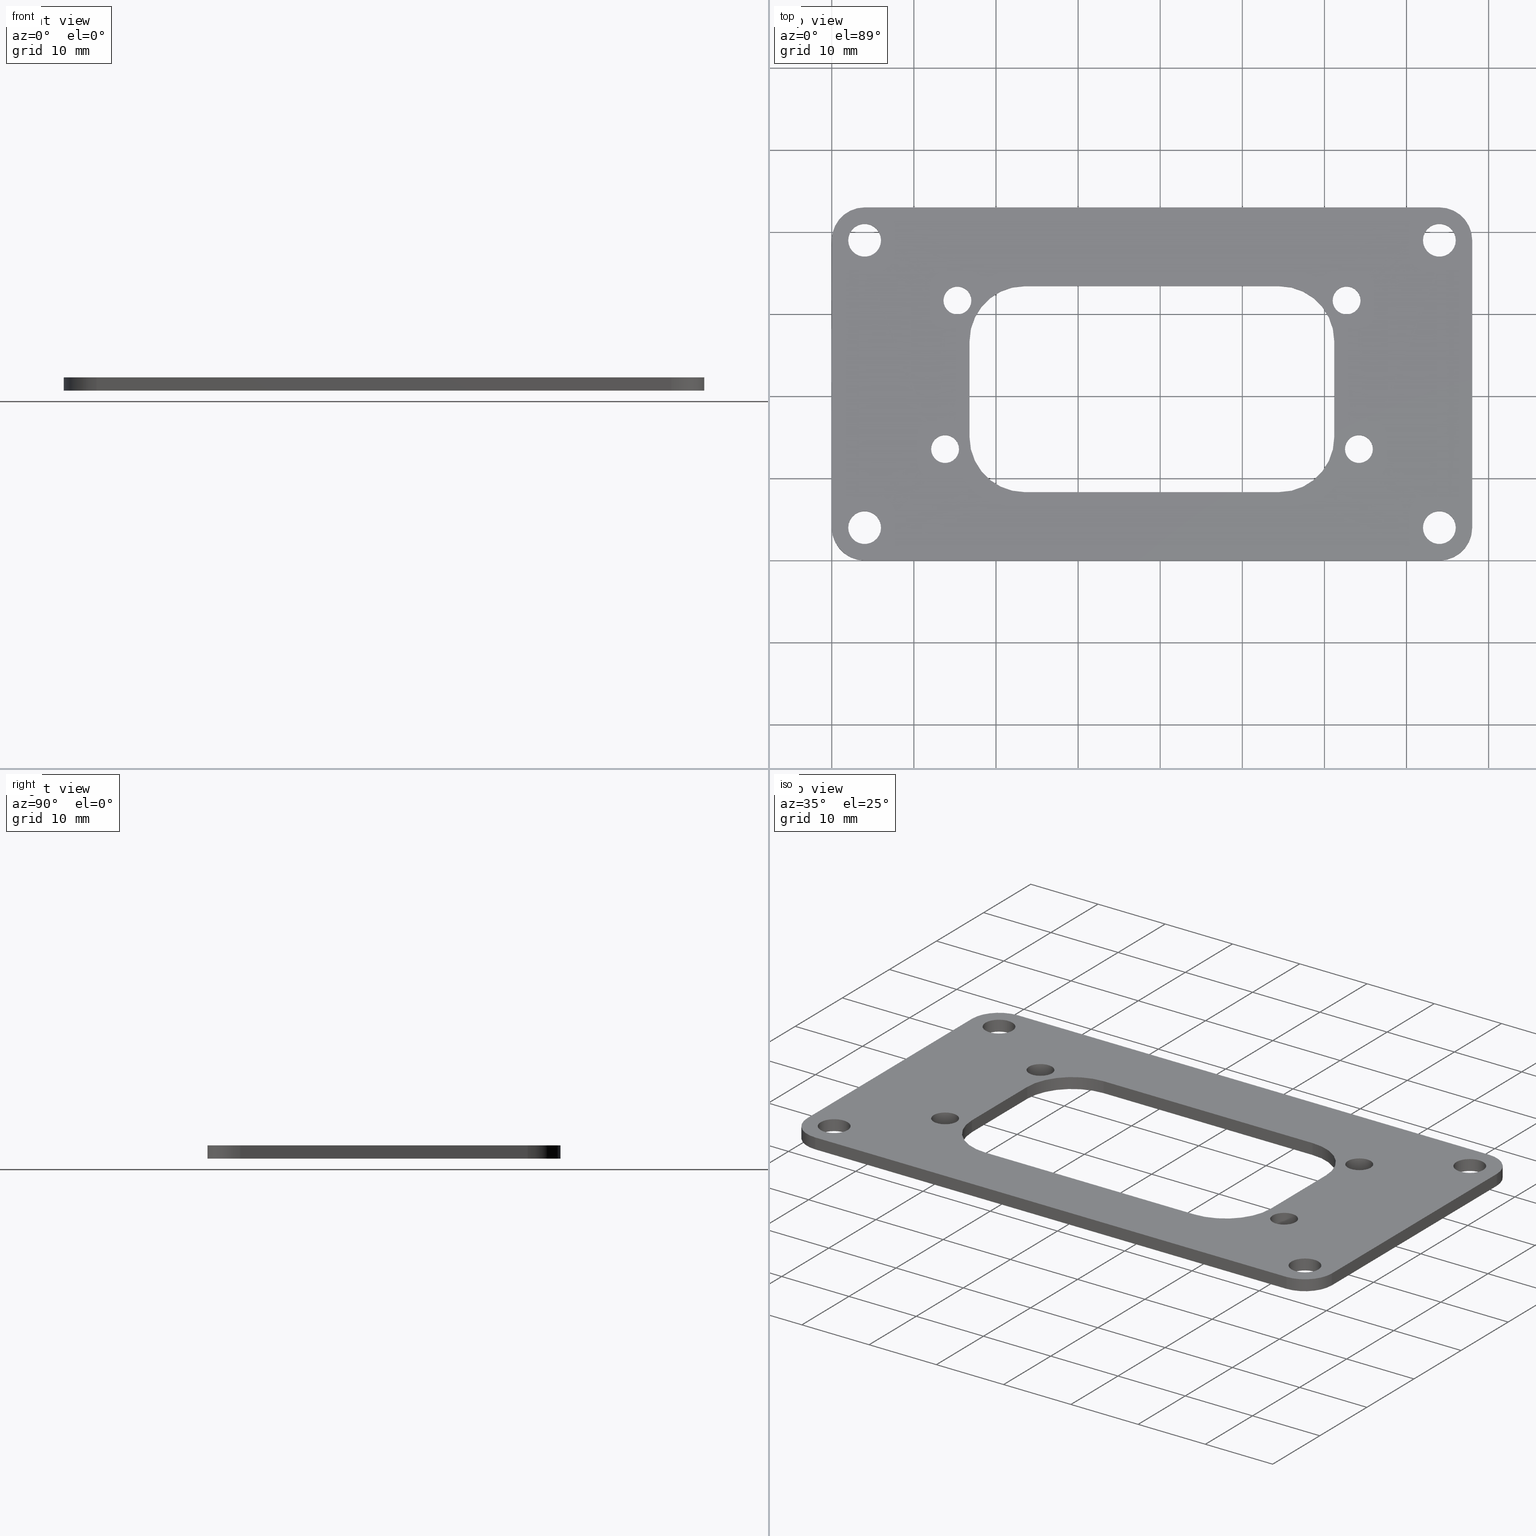
[diagram: canonical four-view strip — front | top / right | iso, engineering-drawing reading convention]
A machine part, canonical four-view strip (front | top / right | iso — engineering-drawing reading convention). The complete STEP part file that produces these views, byte-faithful:
ISO-10303-21;
HEADER;
FILE_DESCRIPTION(('Open CASCADE Model'),'2;1');
FILE_NAME('Open CASCADE Shape Model','2023-08-14T16:38:06',('Author'),(
    'Open CASCADE'),'Open CASCADE STEP processor 7.5','Open CASCADE 7.5'
  ,'Unknown');
FILE_SCHEMA(('AUTOMOTIVE_DESIGN { 1 0 10303 214 1 1 1 1 }'));
ENDSEC;
DATA;
#1 = APPLICATION_PROTOCOL_DEFINITION('international standard',
  'automotive_design',2000,#2);
#2 = APPLICATION_CONTEXT(
  'core data for automotive mechanical design processes');
#3 = SHAPE_DEFINITION_REPRESENTATION(#4,#10);
#4 = PRODUCT_DEFINITION_SHAPE('','',#5);
#5 = PRODUCT_DEFINITION('design','',#6,#9);
#6 = PRODUCT_DEFINITION_FORMATION('','',#7);
#7 = PRODUCT('PCB','PCB','',(#8));
#8 = PRODUCT_CONTEXT('',#2,'mechanical');
#9 = PRODUCT_DEFINITION_CONTEXT('part definition',#2,'design');
#10 = SHAPE_REPRESENTATION('',(#11,#15),#19);
#11 = AXIS2_PLACEMENT_3D('',#12,#13,#14);
#12 = CARTESIAN_POINT('',(0.,0.,0.));
#13 = DIRECTION('',(0.,0.,1.));
#14 = DIRECTION('',(1.,0.,-0.));
#15 = AXIS2_PLACEMENT_3D('',#16,#17,#18);
#16 = CARTESIAN_POINT('',(0.,0.,0.));
#17 = DIRECTION('',(0.,0.,1.));
#18 = DIRECTION('',(1.,0.,-0.));
#19 = ( GEOMETRIC_REPRESENTATION_CONTEXT(3) 
GLOBAL_UNCERTAINTY_ASSIGNED_CONTEXT((#23)) GLOBAL_UNIT_ASSIGNED_CONTEXT(
(#20,#21,#22)) REPRESENTATION_CONTEXT('Context #1',
  '3D Context with UNIT and UNCERTAINTY') );
#20 = ( LENGTH_UNIT() NAMED_UNIT(*) SI_UNIT(.MILLI.,.METRE.) );
#21 = ( NAMED_UNIT(*) PLANE_ANGLE_UNIT() SI_UNIT($,.RADIAN.) );
#22 = ( NAMED_UNIT(*) SI_UNIT($,.STERADIAN.) SOLID_ANGLE_UNIT() );
#23 = UNCERTAINTY_MEASURE_WITH_UNIT(LENGTH_MEASURE(1.E-07),#20,
  'distance_accuracy_value','confusion accuracy');
#24 = PRODUCT_RELATED_PRODUCT_CATEGORY('part',$,(#7));
#25 = SHAPE_DEFINITION_REPRESENTATION(#26,#32);
#26 = PRODUCT_DEFINITION_SHAPE('','',#27);
#27 = PRODUCT_DEFINITION('design','',#28,#31);
#28 = PRODUCT_DEFINITION_FORMATION('','',#29);
#29 = PRODUCT('Board','Board','',(#30));
#30 = PRODUCT_CONTEXT('',#2,'mechanical');
#31 = PRODUCT_DEFINITION_CONTEXT('part definition',#2,'design');
#32 = SHAPE_REPRESENTATION('',(#11,#33),#37);
#33 = AXIS2_PLACEMENT_3D('',#34,#35,#36);
#34 = CARTESIAN_POINT('',(0.,0.,-1.60000442));
#35 = DIRECTION('',(0.,0.,1.));
#36 = DIRECTION('',(1.,0.,-0.));
#37 = ( GEOMETRIC_REPRESENTATION_CONTEXT(3) 
GLOBAL_UNCERTAINTY_ASSIGNED_CONTEXT((#41)) GLOBAL_UNIT_ASSIGNED_CONTEXT(
(#38,#39,#40)) REPRESENTATION_CONTEXT('Context #1',
  '3D Context with UNIT and UNCERTAINTY') );
#38 = ( LENGTH_UNIT() NAMED_UNIT(*) SI_UNIT(.MILLI.,.METRE.) );
#39 = ( NAMED_UNIT(*) PLANE_ANGLE_UNIT() SI_UNIT($,.RADIAN.) );
#40 = ( NAMED_UNIT(*) SI_UNIT($,.STERADIAN.) SOLID_ANGLE_UNIT() );
#41 = UNCERTAINTY_MEASURE_WITH_UNIT(LENGTH_MEASURE(1.E-07),#38,
  'distance_accuracy_value','confusion accuracy');
#42 = ADVANCED_BREP_SHAPE_REPRESENTATION('',(#11,#43),#921);
#43 = MANIFOLD_SOLID_BREP('',#44);
#44 = CLOSED_SHELL('',(#45,#85,#118,#149,#182,#213,#246,#277,#301,#334,
    #367,#400,#433,#475,#506,#539,#570,#603,#634,#667,#689,#722,#755,
    #788,#821,#871));
#45 = ADVANCED_FACE('',(#46),#80,.T.);
#46 = FACE_BOUND('',#47,.T.);
#47 = EDGE_LOOP('',(#48,#58,#66,#74));
#48 = ORIENTED_EDGE('',*,*,#49,.T.);
#49 = EDGE_CURVE('',#50,#52,#54,.T.);
#50 = VERTEX_POINT('',#51);
#51 = CARTESIAN_POINT('',(-8.881784154862E-16,4.,0.));
#52 = VERTEX_POINT('',#53);
#53 = CARTESIAN_POINT('',(-8.881784154862E-16,4.,1.60000442));
#54 = LINE('',#55,#56);
#55 = CARTESIAN_POINT('',(-8.881784154862E-16,4.,0.));
#56 = VECTOR('',#57,1.);
#57 = DIRECTION('',(0.,0.,1.));
#58 = ORIENTED_EDGE('',*,*,#59,.T.);
#59 = EDGE_CURVE('',#52,#60,#62,.T.);
#60 = VERTEX_POINT('',#61);
#61 = CARTESIAN_POINT('',(-8.881784197001E-16,39.,1.60000442));
#62 = LINE('',#63,#64);
#63 = CARTESIAN_POINT('',(0.,4.,1.60000442));
#64 = VECTOR('',#65,1.);
#65 = DIRECTION('',(0.,1.,0.));
#66 = ORIENTED_EDGE('',*,*,#67,.F.);
#67 = EDGE_CURVE('',#68,#60,#70,.T.);
#68 = VERTEX_POINT('',#69);
#69 = CARTESIAN_POINT('',(-8.881784197001E-16,39.,0.));
#70 = LINE('',#71,#72);
#71 = CARTESIAN_POINT('',(-8.881784197001E-16,39.,0.));
#72 = VECTOR('',#73,1.);
#73 = DIRECTION('',(0.,0.,1.));
#74 = ORIENTED_EDGE('',*,*,#75,.F.);
#75 = EDGE_CURVE('',#50,#68,#76,.T.);
#76 = LINE('',#77,#78);
#77 = CARTESIAN_POINT('',(0.,4.,0.));
#78 = VECTOR('',#79,1.);
#79 = DIRECTION('',(0.,1.,0.));
#80 = PLANE('',#81);
#81 = AXIS2_PLACEMENT_3D('',#82,#83,#84);
#82 = CARTESIAN_POINT('',(0.,4.,0.));
#83 = DIRECTION('',(-1.,0.,0.));
#84 = DIRECTION('',(0.,1.,0.));
#85 = ADVANCED_FACE('',(#86),#113,.T.);
#86 = FACE_BOUND('',#87,.T.);
#87 = EDGE_LOOP('',(#88,#89,#98,#106));
#88 = ORIENTED_EDGE('',*,*,#67,.T.);
#89 = ORIENTED_EDGE('',*,*,#90,.T.);
#90 = EDGE_CURVE('',#60,#91,#93,.T.);
#91 = VERTEX_POINT('',#92);
#92 = CARTESIAN_POINT('',(4.,43.,1.60000442));
#93 = CIRCLE('',#94,4.001459203163);
#94 = AXIS2_PLACEMENT_3D('',#95,#96,#97);
#95 = CARTESIAN_POINT('',(4.001458937198,38.998541062802,1.60000442));
#96 = DIRECTION('',(0.,0.,-1.));
#97 = DIRECTION('',(-0.999999933533,3.646012926767E-04,0.));
#98 = ORIENTED_EDGE('',*,*,#99,.F.);
#99 = EDGE_CURVE('',#100,#91,#102,.T.);
#100 = VERTEX_POINT('',#101);
#101 = CARTESIAN_POINT('',(4.,43.,0.));
#102 = LINE('',#103,#104);
#103 = CARTESIAN_POINT('',(4.,43.,0.));
#104 = VECTOR('',#105,1.);
#105 = DIRECTION('',(0.,0.,1.));
#106 = ORIENTED_EDGE('',*,*,#107,.F.);
#107 = EDGE_CURVE('',#68,#100,#108,.T.);
#108 = CIRCLE('',#109,4.001459203163);
#109 = AXIS2_PLACEMENT_3D('',#110,#111,#112);
#110 = CARTESIAN_POINT('',(4.001458937198,38.998541062802,0.));
#111 = DIRECTION('',(0.,0.,-1.));
#112 = DIRECTION('',(-0.999999933533,3.646012926767E-04,0.));
#113 = CYLINDRICAL_SURFACE('',#114,4.001459203163);
#114 = AXIS2_PLACEMENT_3D('',#115,#116,#117);
#115 = CARTESIAN_POINT('',(4.001458937198,38.998541062802,0.));
#116 = DIRECTION('',(0.,0.,-1.));
#117 = DIRECTION('',(-0.999999933533,3.646012926767E-04,0.));
#118 = ADVANCED_FACE('',(#119),#144,.T.);
#119 = FACE_BOUND('',#120,.T.);
#120 = EDGE_LOOP('',(#121,#122,#130,#138));
#121 = ORIENTED_EDGE('',*,*,#99,.T.);
#122 = ORIENTED_EDGE('',*,*,#123,.T.);
#123 = EDGE_CURVE('',#91,#124,#126,.T.);
#124 = VERTEX_POINT('',#125);
#125 = CARTESIAN_POINT('',(74.,43.,1.60000442));
#126 = LINE('',#127,#128);
#127 = CARTESIAN_POINT('',(4.,43.,1.60000442));
#128 = VECTOR('',#129,1.);
#129 = DIRECTION('',(1.,0.,0.));
#130 = ORIENTED_EDGE('',*,*,#131,.F.);
#131 = EDGE_CURVE('',#132,#124,#134,.T.);
#132 = VERTEX_POINT('',#133);
#133 = CARTESIAN_POINT('',(74.,43.,0.));
#134 = LINE('',#135,#136);
#135 = CARTESIAN_POINT('',(74.,43.,0.));
#136 = VECTOR('',#137,1.);
#137 = DIRECTION('',(0.,0.,1.));
#138 = ORIENTED_EDGE('',*,*,#139,.F.);
#139 = EDGE_CURVE('',#100,#132,#140,.T.);
#140 = LINE('',#141,#142);
#141 = CARTESIAN_POINT('',(4.,43.,0.));
#142 = VECTOR('',#143,1.);
#143 = DIRECTION('',(1.,0.,0.));
#144 = PLANE('',#145);
#145 = AXIS2_PLACEMENT_3D('',#146,#147,#148);
#146 = CARTESIAN_POINT('',(4.,43.,0.));
#147 = DIRECTION('',(0.,1.,0.));
#148 = DIRECTION('',(1.,0.,0.));
#149 = ADVANCED_FACE('',(#150),#177,.T.);
#150 = FACE_BOUND('',#151,.T.);
#151 = EDGE_LOOP('',(#152,#153,#162,#170));
#152 = ORIENTED_EDGE('',*,*,#131,.T.);
#153 = ORIENTED_EDGE('',*,*,#154,.T.);
#154 = EDGE_CURVE('',#124,#155,#157,.T.);
#155 = VERTEX_POINT('',#156);
#156 = CARTESIAN_POINT('',(78.,39.,1.60000442));
#157 = CIRCLE('',#158,4.001459203163);
#158 = AXIS2_PLACEMENT_3D('',#159,#160,#161);
#159 = CARTESIAN_POINT('',(73.998541062802,38.998541062802,1.60000442));
#160 = DIRECTION('',(0.,0.,-1.));
#161 = DIRECTION('',(3.646012926767E-04,0.999999933533,0.));
#162 = ORIENTED_EDGE('',*,*,#163,.F.);
#163 = EDGE_CURVE('',#164,#155,#166,.T.);
#164 = VERTEX_POINT('',#165);
#165 = CARTESIAN_POINT('',(78.,39.,0.));
#166 = LINE('',#167,#168);
#167 = CARTESIAN_POINT('',(78.,39.,0.));
#168 = VECTOR('',#169,1.);
#169 = DIRECTION('',(0.,0.,1.));
#170 = ORIENTED_EDGE('',*,*,#171,.F.);
#171 = EDGE_CURVE('',#132,#164,#172,.T.);
#172 = CIRCLE('',#173,4.001459203163);
#173 = AXIS2_PLACEMENT_3D('',#174,#175,#176);
#174 = CARTESIAN_POINT('',(73.998541062802,38.998541062802,0.));
#175 = DIRECTION('',(0.,0.,-1.));
#176 = DIRECTION('',(3.646012926767E-04,0.999999933533,0.));
#177 = CYLINDRICAL_SURFACE('',#178,4.001459203163);
#178 = AXIS2_PLACEMENT_3D('',#179,#180,#181);
#179 = CARTESIAN_POINT('',(73.998541062802,38.998541062802,0.));
#180 = DIRECTION('',(0.,0.,-1.));
#181 = DIRECTION('',(3.646012926767E-04,0.999999933533,0.));
#182 = ADVANCED_FACE('',(#183),#208,.T.);
#183 = FACE_BOUND('',#184,.T.);
#184 = EDGE_LOOP('',(#185,#186,#194,#202));
#185 = ORIENTED_EDGE('',*,*,#163,.T.);
#186 = ORIENTED_EDGE('',*,*,#187,.T.);
#187 = EDGE_CURVE('',#155,#188,#190,.T.);
#188 = VERTEX_POINT('',#189);
#189 = CARTESIAN_POINT('',(78.,4.,1.60000442));
#190 = LINE('',#191,#192);
#191 = CARTESIAN_POINT('',(78.,39.,1.60000442));
#192 = VECTOR('',#193,1.);
#193 = DIRECTION('',(0.,-1.,0.));
#194 = ORIENTED_EDGE('',*,*,#195,.F.);
#195 = EDGE_CURVE('',#196,#188,#198,.T.);
#196 = VERTEX_POINT('',#197);
#197 = CARTESIAN_POINT('',(78.,4.,0.));
#198 = LINE('',#199,#200);
#199 = CARTESIAN_POINT('',(78.,4.,0.));
#200 = VECTOR('',#201,1.);
#201 = DIRECTION('',(0.,0.,1.));
#202 = ORIENTED_EDGE('',*,*,#203,.F.);
#203 = EDGE_CURVE('',#164,#196,#204,.T.);
#204 = LINE('',#205,#206);
#205 = CARTESIAN_POINT('',(78.,39.,0.));
#206 = VECTOR('',#207,1.);
#207 = DIRECTION('',(0.,-1.,0.));
#208 = PLANE('',#209);
#209 = AXIS2_PLACEMENT_3D('',#210,#211,#212);
#210 = CARTESIAN_POINT('',(78.,39.,0.));
#211 = DIRECTION('',(1.,0.,-0.));
#212 = DIRECTION('',(0.,-1.,0.));
#213 = ADVANCED_FACE('',(#214),#241,.T.);
#214 = FACE_BOUND('',#215,.T.);
#215 = EDGE_LOOP('',(#216,#217,#226,#234));
#216 = ORIENTED_EDGE('',*,*,#195,.T.);
#217 = ORIENTED_EDGE('',*,*,#218,.T.);
#218 = EDGE_CURVE('',#188,#219,#221,.T.);
#219 = VERTEX_POINT('',#220);
#220 = CARTESIAN_POINT('',(74.,-1.33226762955E-15,1.60000442));
#221 = CIRCLE('',#222,4.001459203163);
#222 = AXIS2_PLACEMENT_3D('',#223,#224,#225);
#223 = CARTESIAN_POINT('',(73.998541062802,4.001458937198,1.60000442));
#224 = DIRECTION('',(0.,0.,-1.));
#225 = DIRECTION('',(0.999999933533,-3.646012926758E-04,0.));
#226 = ORIENTED_EDGE('',*,*,#227,.F.);
#227 = EDGE_CURVE('',#228,#219,#230,.T.);
#228 = VERTEX_POINT('',#229);
#229 = CARTESIAN_POINT('',(74.,-1.33226762955E-15,0.));
#230 = LINE('',#231,#232);
#231 = CARTESIAN_POINT('',(74.,-1.33226762955E-15,0.));
#232 = VECTOR('',#233,1.);
#233 = DIRECTION('',(0.,0.,1.));
#234 = ORIENTED_EDGE('',*,*,#235,.F.);
#235 = EDGE_CURVE('',#196,#228,#236,.T.);
#236 = CIRCLE('',#237,4.001459203163);
#237 = AXIS2_PLACEMENT_3D('',#238,#239,#240);
#238 = CARTESIAN_POINT('',(73.998541062802,4.001458937198,0.));
#239 = DIRECTION('',(0.,0.,-1.));
#240 = DIRECTION('',(0.999999933533,-3.646012926758E-04,0.));
#241 = CYLINDRICAL_SURFACE('',#242,4.001459203163);
#242 = AXIS2_PLACEMENT_3D('',#243,#244,#245);
#243 = CARTESIAN_POINT('',(73.998541062802,4.001458937198,0.));
#244 = DIRECTION('',(0.,0.,-1.));
#245 = DIRECTION('',(0.999999933533,-3.646012926758E-04,0.));
#246 = ADVANCED_FACE('',(#247),#272,.T.);
#247 = FACE_BOUND('',#248,.T.);
#248 = EDGE_LOOP('',(#249,#250,#258,#266));
#249 = ORIENTED_EDGE('',*,*,#227,.T.);
#250 = ORIENTED_EDGE('',*,*,#251,.T.);
#251 = EDGE_CURVE('',#219,#252,#254,.T.);
#252 = VERTEX_POINT('',#253);
#253 = CARTESIAN_POINT('',(4.,-4.440892098501E-16,1.60000442));
#254 = LINE('',#255,#256);
#255 = CARTESIAN_POINT('',(74.,0.,1.60000442));
#256 = VECTOR('',#257,1.);
#257 = DIRECTION('',(-1.,0.,0.));
#258 = ORIENTED_EDGE('',*,*,#259,.F.);
#259 = EDGE_CURVE('',#260,#252,#262,.T.);
#260 = VERTEX_POINT('',#261);
#261 = CARTESIAN_POINT('',(4.,-4.440892098501E-16,0.));
#262 = LINE('',#263,#264);
#263 = CARTESIAN_POINT('',(4.,-4.440892098501E-16,0.));
#264 = VECTOR('',#265,1.);
#265 = DIRECTION('',(0.,0.,1.));
#266 = ORIENTED_EDGE('',*,*,#267,.F.);
#267 = EDGE_CURVE('',#228,#260,#268,.T.);
#268 = LINE('',#269,#270);
#269 = CARTESIAN_POINT('',(74.,0.,0.));
#270 = VECTOR('',#271,1.);
#271 = DIRECTION('',(-1.,0.,0.));
#272 = PLANE('',#273);
#273 = AXIS2_PLACEMENT_3D('',#274,#275,#276);
#274 = CARTESIAN_POINT('',(74.,0.,0.));
#275 = DIRECTION('',(0.,-1.,0.));
#276 = DIRECTION('',(-1.,0.,0.));
#277 = ADVANCED_FACE('',(#278),#296,.T.);
#278 = FACE_BOUND('',#279,.T.);
#279 = EDGE_LOOP('',(#280,#281,#288,#289));
#280 = ORIENTED_EDGE('',*,*,#259,.T.);
#281 = ORIENTED_EDGE('',*,*,#282,.T.);
#282 = EDGE_CURVE('',#252,#52,#283,.T.);
#283 = CIRCLE('',#284,4.001459203163);
#284 = AXIS2_PLACEMENT_3D('',#285,#286,#287);
#285 = CARTESIAN_POINT('',(4.001458937198,4.001458937198,1.60000442));
#286 = DIRECTION('',(0.,0.,-1.));
#287 = DIRECTION('',(-3.646012926771E-04,-0.999999933533,-0.));
#288 = ORIENTED_EDGE('',*,*,#49,.F.);
#289 = ORIENTED_EDGE('',*,*,#290,.F.);
#290 = EDGE_CURVE('',#260,#50,#291,.T.);
#291 = CIRCLE('',#292,4.001459203163);
#292 = AXIS2_PLACEMENT_3D('',#293,#294,#295);
#293 = CARTESIAN_POINT('',(4.001458937198,4.001458937198,0.));
#294 = DIRECTION('',(0.,0.,-1.));
#295 = DIRECTION('',(-3.646012926771E-04,-0.999999933533,-0.));
#296 = CYLINDRICAL_SURFACE('',#297,4.001459203163);
#297 = AXIS2_PLACEMENT_3D('',#298,#299,#300);
#298 = CARTESIAN_POINT('',(4.001458937198,4.001458937198,0.));
#299 = DIRECTION('',(0.,0.,-1.));
#300 = DIRECTION('',(-3.646012926771E-04,-0.999999933533,-0.));
#301 = ADVANCED_FACE('',(#302),#329,.F.);
#302 = FACE_BOUND('',#303,.T.);
#303 = EDGE_LOOP('',(#304,#314,#321,#322));
#304 = ORIENTED_EDGE('',*,*,#305,.T.);
#305 = EDGE_CURVE('',#306,#308,#310,.T.);
#306 = VERTEX_POINT('',#307);
#307 = CARTESIAN_POINT('',(6.,4.,0.));
#308 = VERTEX_POINT('',#309);
#309 = CARTESIAN_POINT('',(6.,4.,1.60000442));
#310 = LINE('',#311,#312);
#311 = CARTESIAN_POINT('',(6.,4.,0.));
#312 = VECTOR('',#313,1.);
#313 = DIRECTION('',(0.,0.,1.));
#314 = ORIENTED_EDGE('',*,*,#315,.T.);
#315 = EDGE_CURVE('',#308,#308,#316,.T.);
#316 = CIRCLE('',#317,2.);
#317 = AXIS2_PLACEMENT_3D('',#318,#319,#320);
#318 = CARTESIAN_POINT('',(4.,4.,1.60000442));
#319 = DIRECTION('',(0.,0.,1.));
#320 = DIRECTION('',(1.,0.,-0.));
#321 = ORIENTED_EDGE('',*,*,#305,.F.);
#322 = ORIENTED_EDGE('',*,*,#323,.F.);
#323 = EDGE_CURVE('',#306,#306,#324,.T.);
#324 = CIRCLE('',#325,2.);
#325 = AXIS2_PLACEMENT_3D('',#326,#327,#328);
#326 = CARTESIAN_POINT('',(4.,4.,0.));
#327 = DIRECTION('',(0.,0.,1.));
#328 = DIRECTION('',(1.,0.,-0.));
#329 = CYLINDRICAL_SURFACE('',#330,2.);
#330 = AXIS2_PLACEMENT_3D('',#331,#332,#333);
#331 = CARTESIAN_POINT('',(4.,4.,0.));
#332 = DIRECTION('',(-0.,-0.,-1.));
#333 = DIRECTION('',(1.,0.,-0.));
#334 = ADVANCED_FACE('',(#335),#362,.F.);
#335 = FACE_BOUND('',#336,.T.);
#336 = EDGE_LOOP('',(#337,#347,#354,#355));
#337 = ORIENTED_EDGE('',*,*,#338,.T.);
#338 = EDGE_CURVE('',#339,#341,#343,.T.);
#339 = VERTEX_POINT('',#340);
#340 = CARTESIAN_POINT('',(15.5,13.57,0.));
#341 = VERTEX_POINT('',#342);
#342 = CARTESIAN_POINT('',(15.5,13.57,1.60000442));
#343 = LINE('',#344,#345);
#344 = CARTESIAN_POINT('',(15.5,13.57,0.));
#345 = VECTOR('',#346,1.);
#346 = DIRECTION('',(0.,0.,1.));
#347 = ORIENTED_EDGE('',*,*,#348,.T.);
#348 = EDGE_CURVE('',#341,#341,#349,.T.);
#349 = CIRCLE('',#350,1.7);
#350 = AXIS2_PLACEMENT_3D('',#351,#352,#353);
#351 = CARTESIAN_POINT('',(13.8,13.57,1.60000442));
#352 = DIRECTION('',(0.,0.,1.));
#353 = DIRECTION('',(1.,0.,-0.));
#354 = ORIENTED_EDGE('',*,*,#338,.F.);
#355 = ORIENTED_EDGE('',*,*,#356,.F.);
#356 = EDGE_CURVE('',#339,#339,#357,.T.);
#357 = CIRCLE('',#358,1.7);
#358 = AXIS2_PLACEMENT_3D('',#359,#360,#361);
#359 = CARTESIAN_POINT('',(13.8,13.57,0.));
#360 = DIRECTION('',(0.,0.,1.));
#361 = DIRECTION('',(1.,0.,-0.));
#362 = CYLINDRICAL_SURFACE('',#363,1.7);
#363 = AXIS2_PLACEMENT_3D('',#364,#365,#366);
#364 = CARTESIAN_POINT('',(13.8,13.57,0.));
#365 = DIRECTION('',(-0.,-0.,-1.));
#366 = DIRECTION('',(1.,0.,-0.));
#367 = ADVANCED_FACE('',(#368),#395,.F.);
#368 = FACE_BOUND('',#369,.T.);
#369 = EDGE_LOOP('',(#370,#380,#387,#388));
#370 = ORIENTED_EDGE('',*,*,#371,.T.);
#371 = EDGE_CURVE('',#372,#374,#376,.T.);
#372 = VERTEX_POINT('',#373);
#373 = CARTESIAN_POINT('',(6.,39.,0.));
#374 = VERTEX_POINT('',#375);
#375 = CARTESIAN_POINT('',(6.,39.,1.60000442));
#376 = LINE('',#377,#378);
#377 = CARTESIAN_POINT('',(6.,39.,0.));
#378 = VECTOR('',#379,1.);
#379 = DIRECTION('',(0.,0.,1.));
#380 = ORIENTED_EDGE('',*,*,#381,.T.);
#381 = EDGE_CURVE('',#374,#374,#382,.T.);
#382 = CIRCLE('',#383,2.);
#383 = AXIS2_PLACEMENT_3D('',#384,#385,#386);
#384 = CARTESIAN_POINT('',(4.,39.,1.60000442));
#385 = DIRECTION('',(0.,0.,1.));
#386 = DIRECTION('',(1.,0.,-0.));
#387 = ORIENTED_EDGE('',*,*,#371,.F.);
#388 = ORIENTED_EDGE('',*,*,#389,.F.);
#389 = EDGE_CURVE('',#372,#372,#390,.T.);
#390 = CIRCLE('',#391,2.);
#391 = AXIS2_PLACEMENT_3D('',#392,#393,#394);
#392 = CARTESIAN_POINT('',(4.,39.,0.));
#393 = DIRECTION('',(0.,0.,1.));
#394 = DIRECTION('',(1.,0.,-0.));
#395 = CYLINDRICAL_SURFACE('',#396,2.);
#396 = AXIS2_PLACEMENT_3D('',#397,#398,#399);
#397 = CARTESIAN_POINT('',(4.,39.,0.));
#398 = DIRECTION('',(-0.,-0.,-1.));
#399 = DIRECTION('',(1.,0.,-0.));
#400 = ADVANCED_FACE('',(#401),#428,.F.);
#401 = FACE_BOUND('',#402,.T.);
#402 = EDGE_LOOP('',(#403,#413,#420,#421));
#403 = ORIENTED_EDGE('',*,*,#404,.T.);
#404 = EDGE_CURVE('',#405,#407,#409,.T.);
#405 = VERTEX_POINT('',#406);
#406 = CARTESIAN_POINT('',(17.,31.669,0.));
#407 = VERTEX_POINT('',#408);
#408 = CARTESIAN_POINT('',(17.,31.669,1.60000442));
#409 = LINE('',#410,#411);
#410 = CARTESIAN_POINT('',(17.,31.669,0.));
#411 = VECTOR('',#412,1.);
#412 = DIRECTION('',(0.,0.,1.));
#413 = ORIENTED_EDGE('',*,*,#414,.T.);
#414 = EDGE_CURVE('',#407,#407,#415,.T.);
#415 = CIRCLE('',#416,1.7);
#416 = AXIS2_PLACEMENT_3D('',#417,#418,#419);
#417 = CARTESIAN_POINT('',(15.3,31.669,1.60000442));
#418 = DIRECTION('',(0.,0.,1.));
#419 = DIRECTION('',(1.,0.,-0.));
#420 = ORIENTED_EDGE('',*,*,#404,.F.);
#421 = ORIENTED_EDGE('',*,*,#422,.F.);
#422 = EDGE_CURVE('',#405,#405,#423,.T.);
#423 = CIRCLE('',#424,1.7);
#424 = AXIS2_PLACEMENT_3D('',#425,#426,#427);
#425 = CARTESIAN_POINT('',(15.3,31.669,0.));
#426 = DIRECTION('',(0.,0.,1.));
#427 = DIRECTION('',(1.,0.,-0.));
#428 = CYLINDRICAL_SURFACE('',#429,1.7);
#429 = AXIS2_PLACEMENT_3D('',#430,#431,#432);
#430 = CARTESIAN_POINT('',(15.3,31.669,0.));
#431 = DIRECTION('',(-0.,-0.,-1.));
#432 = DIRECTION('',(1.,0.,-0.));
#433 = ADVANCED_FACE('',(#434),#470,.F.);
#434 = FACE_BOUND('',#435,.F.);
#435 = EDGE_LOOP('',(#436,#446,#455,#463));
#436 = ORIENTED_EDGE('',*,*,#437,.T.);
#437 = EDGE_CURVE('',#438,#440,#442,.T.);
#438 = VERTEX_POINT('',#439);
#439 = CARTESIAN_POINT('',(23.475,8.319,0.));
#440 = VERTEX_POINT('',#441);
#441 = CARTESIAN_POINT('',(23.475,8.319,1.60000442));
#442 = LINE('',#443,#444);
#443 = CARTESIAN_POINT('',(23.475,8.319,0.));
#444 = VECTOR('',#445,1.);
#445 = DIRECTION('',(0.,0.,1.));
#446 = ORIENTED_EDGE('',*,*,#447,.T.);
#447 = EDGE_CURVE('',#440,#448,#450,.T.);
#448 = VERTEX_POINT('',#449);
#449 = CARTESIAN_POINT('',(16.775,15.019,1.60000442));
#450 = CIRCLE('',#451,6.698687448502);
#451 = AXIS2_PLACEMENT_3D('',#452,#453,#454);
#452 = CARTESIAN_POINT('',(23.473687319885,15.017687319885,1.60000442));
#453 = DIRECTION('',(0.,0.,-1.));
#454 = DIRECTION('',(1.959607946136E-04,-0.9999999808,0.));
#455 = ORIENTED_EDGE('',*,*,#456,.F.);
#456 = EDGE_CURVE('',#457,#448,#459,.T.);
#457 = VERTEX_POINT('',#458);
#458 = CARTESIAN_POINT('',(16.775,15.019,0.));
#459 = LINE('',#460,#461);
#460 = CARTESIAN_POINT('',(16.775,15.019,0.));
#461 = VECTOR('',#462,1.);
#462 = DIRECTION('',(0.,0.,1.));
#463 = ORIENTED_EDGE('',*,*,#464,.F.);
#464 = EDGE_CURVE('',#438,#457,#465,.T.);
#465 = CIRCLE('',#466,6.698687448502);
#466 = AXIS2_PLACEMENT_3D('',#467,#468,#469);
#467 = CARTESIAN_POINT('',(23.473687319885,15.017687319885,0.));
#468 = DIRECTION('',(0.,0.,-1.));
#469 = DIRECTION('',(1.959607946136E-04,-0.9999999808,0.));
#470 = CYLINDRICAL_SURFACE('',#471,6.698687448502);
#471 = AXIS2_PLACEMENT_3D('',#472,#473,#474);
#472 = CARTESIAN_POINT('',(23.473687319885,15.017687319885,0.));
#473 = DIRECTION('',(0.,0.,-1.));
#474 = DIRECTION('',(1.959607946136E-04,-0.9999999808,0.));
#475 = ADVANCED_FACE('',(#476),#501,.F.);
#476 = FACE_BOUND('',#477,.F.);
#477 = EDGE_LOOP('',(#478,#488,#494,#495));
#478 = ORIENTED_EDGE('',*,*,#479,.T.);
#479 = EDGE_CURVE('',#480,#482,#484,.T.);
#480 = VERTEX_POINT('',#481);
#481 = CARTESIAN_POINT('',(54.5,8.319,0.));
#482 = VERTEX_POINT('',#483);
#483 = CARTESIAN_POINT('',(54.5,8.319,1.60000442));
#484 = LINE('',#485,#486);
#485 = CARTESIAN_POINT('',(54.5,8.319,0.));
#486 = VECTOR('',#487,1.);
#487 = DIRECTION('',(0.,0.,1.));
#488 = ORIENTED_EDGE('',*,*,#489,.T.);
#489 = EDGE_CURVE('',#482,#440,#490,.T.);
#490 = LINE('',#491,#492);
#491 = CARTESIAN_POINT('',(54.5,8.319,1.60000442));
#492 = VECTOR('',#493,1.);
#493 = DIRECTION('',(-1.,0.,0.));
#494 = ORIENTED_EDGE('',*,*,#437,.F.);
#495 = ORIENTED_EDGE('',*,*,#496,.F.);
#496 = EDGE_CURVE('',#480,#438,#497,.T.);
#497 = LINE('',#498,#499);
#498 = CARTESIAN_POINT('',(54.5,8.319,0.));
#499 = VECTOR('',#500,1.);
#500 = DIRECTION('',(-1.,0.,0.));
#501 = PLANE('',#502);
#502 = AXIS2_PLACEMENT_3D('',#503,#504,#505);
#503 = CARTESIAN_POINT('',(54.5,8.319,0.));
#504 = DIRECTION('',(0.,-1.,0.));
#505 = DIRECTION('',(-1.,0.,0.));
#506 = ADVANCED_FACE('',(#507),#534,.F.);
#507 = FACE_BOUND('',#508,.F.);
#508 = EDGE_LOOP('',(#509,#519,#526,#527));
#509 = ORIENTED_EDGE('',*,*,#510,.T.);
#510 = EDGE_CURVE('',#511,#513,#515,.T.);
#511 = VERTEX_POINT('',#512);
#512 = CARTESIAN_POINT('',(61.2,15.019,0.));
#513 = VERTEX_POINT('',#514);
#514 = CARTESIAN_POINT('',(61.2,15.019,1.60000442));
#515 = LINE('',#516,#517);
#516 = CARTESIAN_POINT('',(61.2,15.019,0.));
#517 = VECTOR('',#518,1.);
#518 = DIRECTION('',(0.,0.,1.));
#519 = ORIENTED_EDGE('',*,*,#520,.T.);
#520 = EDGE_CURVE('',#513,#482,#521,.T.);
#521 = CIRCLE('',#522,6.698687448502);
#522 = AXIS2_PLACEMENT_3D('',#523,#524,#525);
#523 = CARTESIAN_POINT('',(54.501312680115,15.017687319885,1.60000442));
#524 = DIRECTION('',(0.,0.,-1.));
#525 = DIRECTION('',(0.9999999808,1.959607946123E-04,0.));
#526 = ORIENTED_EDGE('',*,*,#479,.F.);
#527 = ORIENTED_EDGE('',*,*,#528,.F.);
#528 = EDGE_CURVE('',#511,#480,#529,.T.);
#529 = CIRCLE('',#530,6.698687448502);
#530 = AXIS2_PLACEMENT_3D('',#531,#532,#533);
#531 = CARTESIAN_POINT('',(54.501312680115,15.017687319885,0.));
#532 = DIRECTION('',(0.,0.,-1.));
#533 = DIRECTION('',(0.9999999808,1.959607946123E-04,0.));
#534 = CYLINDRICAL_SURFACE('',#535,6.698687448502);
#535 = AXIS2_PLACEMENT_3D('',#536,#537,#538);
#536 = CARTESIAN_POINT('',(54.501312680115,15.017687319885,0.));
#537 = DIRECTION('',(0.,0.,-1.));
#538 = DIRECTION('',(0.9999999808,1.959607946123E-04,0.));
#539 = ADVANCED_FACE('',(#540),#565,.F.);
#540 = FACE_BOUND('',#541,.F.);
#541 = EDGE_LOOP('',(#542,#552,#558,#559));
#542 = ORIENTED_EDGE('',*,*,#543,.T.);
#543 = EDGE_CURVE('',#544,#546,#548,.T.);
#544 = VERTEX_POINT('',#545);
#545 = CARTESIAN_POINT('',(61.2,26.72,0.));
#546 = VERTEX_POINT('',#547);
#547 = CARTESIAN_POINT('',(61.2,26.72,1.60000442));
#548 = LINE('',#549,#550);
#549 = CARTESIAN_POINT('',(61.2,26.72,0.));
#550 = VECTOR('',#551,1.);
#551 = DIRECTION('',(0.,0.,1.));
#552 = ORIENTED_EDGE('',*,*,#553,.T.);
#553 = EDGE_CURVE('',#546,#513,#554,.T.);
#554 = LINE('',#555,#556);
#555 = CARTESIAN_POINT('',(61.2,26.72,1.60000442));
#556 = VECTOR('',#557,1.);
#557 = DIRECTION('',(0.,-1.,0.));
#558 = ORIENTED_EDGE('',*,*,#510,.F.);
#559 = ORIENTED_EDGE('',*,*,#560,.F.);
#560 = EDGE_CURVE('',#544,#511,#561,.T.);
#561 = LINE('',#562,#563);
#562 = CARTESIAN_POINT('',(61.2,26.72,0.));
#563 = VECTOR('',#564,1.);
#564 = DIRECTION('',(0.,-1.,0.));
#565 = PLANE('',#566);
#566 = AXIS2_PLACEMENT_3D('',#567,#568,#569);
#567 = CARTESIAN_POINT('',(61.2,26.72,0.));
#568 = DIRECTION('',(1.,0.,-0.));
#569 = DIRECTION('',(0.,-1.,0.));
#570 = ADVANCED_FACE('',(#571),#598,.F.);
#571 = FACE_BOUND('',#572,.F.);
#572 = EDGE_LOOP('',(#573,#583,#590,#591));
#573 = ORIENTED_EDGE('',*,*,#574,.T.);
#574 = EDGE_CURVE('',#575,#577,#579,.T.);
#575 = VERTEX_POINT('',#576);
#576 = CARTESIAN_POINT('',(54.5,33.42,0.));
#577 = VERTEX_POINT('',#578);
#578 = CARTESIAN_POINT('',(54.5,33.42,1.60000442));
#579 = LINE('',#580,#581);
#580 = CARTESIAN_POINT('',(54.5,33.42,0.));
#581 = VECTOR('',#582,1.);
#582 = DIRECTION('',(0.,0.,1.));
#583 = ORIENTED_EDGE('',*,*,#584,.T.);
#584 = EDGE_CURVE('',#577,#546,#585,.T.);
#585 = CIRCLE('',#586,6.698687448502);
#586 = AXIS2_PLACEMENT_3D('',#587,#588,#589);
#587 = CARTESIAN_POINT('',(54.501312680115,26.721312680115,1.60000442));
#588 = DIRECTION('',(0.,0.,-1.));
#589 = DIRECTION('',(-1.959607946115E-04,0.9999999808,0.));
#590 = ORIENTED_EDGE('',*,*,#543,.F.);
#591 = ORIENTED_EDGE('',*,*,#592,.F.);
#592 = EDGE_CURVE('',#575,#544,#593,.T.);
#593 = CIRCLE('',#594,6.698687448502);
#594 = AXIS2_PLACEMENT_3D('',#595,#596,#597);
#595 = CARTESIAN_POINT('',(54.501312680115,26.721312680115,0.));
#596 = DIRECTION('',(0.,0.,-1.));
#597 = DIRECTION('',(-1.959607946115E-04,0.9999999808,0.));
#598 = CYLINDRICAL_SURFACE('',#599,6.698687448502);
#599 = AXIS2_PLACEMENT_3D('',#600,#601,#602);
#600 = CARTESIAN_POINT('',(54.501312680115,26.721312680115,0.));
#601 = DIRECTION('',(0.,0.,-1.));
#602 = DIRECTION('',(-1.959607946115E-04,0.9999999808,0.));
#603 = ADVANCED_FACE('',(#604),#629,.F.);
#604 = FACE_BOUND('',#605,.F.);
#605 = EDGE_LOOP('',(#606,#616,#622,#623));
#606 = ORIENTED_EDGE('',*,*,#607,.T.);
#607 = EDGE_CURVE('',#608,#610,#612,.T.);
#608 = VERTEX_POINT('',#609);
#609 = CARTESIAN_POINT('',(23.475,33.42,0.));
#610 = VERTEX_POINT('',#611);
#611 = CARTESIAN_POINT('',(23.475,33.42,1.60000442));
#612 = LINE('',#613,#614);
#613 = CARTESIAN_POINT('',(23.475,33.42,0.));
#614 = VECTOR('',#615,1.);
#615 = DIRECTION('',(0.,0.,1.));
#616 = ORIENTED_EDGE('',*,*,#617,.T.);
#617 = EDGE_CURVE('',#610,#577,#618,.T.);
#618 = LINE('',#619,#620);
#619 = CARTESIAN_POINT('',(23.475,33.42,1.60000442));
#620 = VECTOR('',#621,1.);
#621 = DIRECTION('',(1.,0.,0.));
#622 = ORIENTED_EDGE('',*,*,#574,.F.);
#623 = ORIENTED_EDGE('',*,*,#624,.F.);
#624 = EDGE_CURVE('',#608,#575,#625,.T.);
#625 = LINE('',#626,#627);
#626 = CARTESIAN_POINT('',(23.475,33.42,0.));
#627 = VECTOR('',#628,1.);
#628 = DIRECTION('',(1.,0.,0.));
#629 = PLANE('',#630);
#630 = AXIS2_PLACEMENT_3D('',#631,#632,#633);
#631 = CARTESIAN_POINT('',(23.475,33.42,0.));
#632 = DIRECTION('',(0.,1.,0.));
#633 = DIRECTION('',(1.,0.,0.));
#634 = ADVANCED_FACE('',(#635),#662,.F.);
#635 = FACE_BOUND('',#636,.F.);
#636 = EDGE_LOOP('',(#637,#647,#654,#655));
#637 = ORIENTED_EDGE('',*,*,#638,.T.);
#638 = EDGE_CURVE('',#639,#641,#643,.T.);
#639 = VERTEX_POINT('',#640);
#640 = CARTESIAN_POINT('',(16.775,26.72,0.));
#641 = VERTEX_POINT('',#642);
#642 = CARTESIAN_POINT('',(16.775,26.72,1.60000442));
#643 = LINE('',#644,#645);
#644 = CARTESIAN_POINT('',(16.775,26.72,0.));
#645 = VECTOR('',#646,1.);
#646 = DIRECTION('',(0.,0.,1.));
#647 = ORIENTED_EDGE('',*,*,#648,.T.);
#648 = EDGE_CURVE('',#641,#610,#649,.T.);
#649 = CIRCLE('',#650,6.698687448502);
#650 = AXIS2_PLACEMENT_3D('',#651,#652,#653);
#651 = CARTESIAN_POINT('',(23.473687319885,26.721312680115,1.60000442));
#652 = DIRECTION('',(0.,0.,-1.));
#653 = DIRECTION('',(-0.9999999808,-1.959607946125E-04,-0.));
#654 = ORIENTED_EDGE('',*,*,#607,.F.);
#655 = ORIENTED_EDGE('',*,*,#656,.F.);
#656 = EDGE_CURVE('',#639,#608,#657,.T.);
#657 = CIRCLE('',#658,6.698687448502);
#658 = AXIS2_PLACEMENT_3D('',#659,#660,#661);
#659 = CARTESIAN_POINT('',(23.473687319885,26.721312680115,0.));
#660 = DIRECTION('',(0.,0.,-1.));
#661 = DIRECTION('',(-0.9999999808,-1.959607946125E-04,-0.));
#662 = CYLINDRICAL_SURFACE('',#663,6.698687448502);
#663 = AXIS2_PLACEMENT_3D('',#664,#665,#666);
#664 = CARTESIAN_POINT('',(23.473687319885,26.721312680115,0.));
#665 = DIRECTION('',(0.,0.,-1.));
#666 = DIRECTION('',(-0.9999999808,-1.959607946125E-04,-0.));
#667 = ADVANCED_FACE('',(#668),#684,.F.);
#668 = FACE_BOUND('',#669,.F.);
#669 = EDGE_LOOP('',(#670,#671,#677,#678));
#670 = ORIENTED_EDGE('',*,*,#456,.T.);
#671 = ORIENTED_EDGE('',*,*,#672,.T.);
#672 = EDGE_CURVE('',#448,#641,#673,.T.);
#673 = LINE('',#674,#675);
#674 = CARTESIAN_POINT('',(16.775,15.019,1.60000442));
#675 = VECTOR('',#676,1.);
#676 = DIRECTION('',(0.,1.,0.));
#677 = ORIENTED_EDGE('',*,*,#638,.F.);
#678 = ORIENTED_EDGE('',*,*,#679,.F.);
#679 = EDGE_CURVE('',#457,#639,#680,.T.);
#680 = LINE('',#681,#682);
#681 = CARTESIAN_POINT('',(16.775,15.019,0.));
#682 = VECTOR('',#683,1.);
#683 = DIRECTION('',(0.,1.,0.));
#684 = PLANE('',#685);
#685 = AXIS2_PLACEMENT_3D('',#686,#687,#688);
#686 = CARTESIAN_POINT('',(16.775,15.019,0.));
#687 = DIRECTION('',(-1.,0.,0.));
#688 = DIRECTION('',(0.,1.,0.));
#689 = ADVANCED_FACE('',(#690),#717,.F.);
#690 = FACE_BOUND('',#691,.T.);
#691 = EDGE_LOOP('',(#692,#702,#709,#710));
#692 = ORIENTED_EDGE('',*,*,#693,.T.);
#693 = EDGE_CURVE('',#694,#696,#698,.T.);
#694 = VERTEX_POINT('',#695);
#695 = CARTESIAN_POINT('',(76.,4.,0.));
#696 = VERTEX_POINT('',#697);
#697 = CARTESIAN_POINT('',(76.,4.,1.60000442));
#698 = LINE('',#699,#700);
#699 = CARTESIAN_POINT('',(76.,4.,0.));
#700 = VECTOR('',#701,1.);
#701 = DIRECTION('',(0.,0.,1.));
#702 = ORIENTED_EDGE('',*,*,#703,.T.);
#703 = EDGE_CURVE('',#696,#696,#704,.T.);
#704 = CIRCLE('',#705,2.);
#705 = AXIS2_PLACEMENT_3D('',#706,#707,#708);
#706 = CARTESIAN_POINT('',(74.,4.,1.60000442));
#707 = DIRECTION('',(0.,0.,1.));
#708 = DIRECTION('',(1.,0.,-0.));
#709 = ORIENTED_EDGE('',*,*,#693,.F.);
#710 = ORIENTED_EDGE('',*,*,#711,.F.);
#711 = EDGE_CURVE('',#694,#694,#712,.T.);
#712 = CIRCLE('',#713,2.);
#713 = AXIS2_PLACEMENT_3D('',#714,#715,#716);
#714 = CARTESIAN_POINT('',(74.,4.,0.));
#715 = DIRECTION('',(0.,0.,1.));
#716 = DIRECTION('',(1.,0.,-0.));
#717 = CYLINDRICAL_SURFACE('',#718,2.);
#718 = AXIS2_PLACEMENT_3D('',#719,#720,#721);
#719 = CARTESIAN_POINT('',(74.,4.,0.));
#720 = DIRECTION('',(-0.,-0.,-1.));
#721 = DIRECTION('',(1.,0.,-0.));
#722 = ADVANCED_FACE('',(#723),#750,.F.);
#723 = FACE_BOUND('',#724,.T.);
#724 = EDGE_LOOP('',(#725,#735,#742,#743));
#725 = ORIENTED_EDGE('',*,*,#726,.T.);
#726 = EDGE_CURVE('',#727,#729,#731,.T.);
#727 = VERTEX_POINT('',#728);
#728 = CARTESIAN_POINT('',(64.4,31.669,0.));
#729 = VERTEX_POINT('',#730);
#730 = CARTESIAN_POINT('',(64.4,31.669,1.60000442));
#731 = LINE('',#732,#733);
#732 = CARTESIAN_POINT('',(64.4,31.669,0.));
#733 = VECTOR('',#734,1.);
#734 = DIRECTION('',(0.,0.,1.));
#735 = ORIENTED_EDGE('',*,*,#736,.T.);
#736 = EDGE_CURVE('',#729,#729,#737,.T.);
#737 = CIRCLE('',#738,1.7);
#738 = AXIS2_PLACEMENT_3D('',#739,#740,#741);
#739 = CARTESIAN_POINT('',(62.7,31.669,1.60000442));
#740 = DIRECTION('',(0.,0.,1.));
#741 = DIRECTION('',(1.,0.,-0.));
#742 = ORIENTED_EDGE('',*,*,#726,.F.);
#743 = ORIENTED_EDGE('',*,*,#744,.F.);
#744 = EDGE_CURVE('',#727,#727,#745,.T.);
#745 = CIRCLE('',#746,1.7);
#746 = AXIS2_PLACEMENT_3D('',#747,#748,#749);
#747 = CARTESIAN_POINT('',(62.7,31.669,0.));
#748 = DIRECTION('',(0.,0.,1.));
#749 = DIRECTION('',(1.,0.,-0.));
#750 = CYLINDRICAL_SURFACE('',#751,1.7);
#751 = AXIS2_PLACEMENT_3D('',#752,#753,#754);
#752 = CARTESIAN_POINT('',(62.7,31.669,0.));
#753 = DIRECTION('',(-0.,-0.,-1.));
#754 = DIRECTION('',(1.,0.,-0.));
#755 = ADVANCED_FACE('',(#756),#783,.F.);
#756 = FACE_BOUND('',#757,.T.);
#757 = EDGE_LOOP('',(#758,#768,#775,#776));
#758 = ORIENTED_EDGE('',*,*,#759,.T.);
#759 = EDGE_CURVE('',#760,#762,#764,.T.);
#760 = VERTEX_POINT('',#761);
#761 = CARTESIAN_POINT('',(65.9,13.57,0.));
#762 = VERTEX_POINT('',#763);
#763 = CARTESIAN_POINT('',(65.9,13.57,1.60000442));
#764 = LINE('',#765,#766);
#765 = CARTESIAN_POINT('',(65.9,13.57,0.));
#766 = VECTOR('',#767,1.);
#767 = DIRECTION('',(0.,0.,1.));
#768 = ORIENTED_EDGE('',*,*,#769,.T.);
#769 = EDGE_CURVE('',#762,#762,#770,.T.);
#770 = CIRCLE('',#771,1.7);
#771 = AXIS2_PLACEMENT_3D('',#772,#773,#774);
#772 = CARTESIAN_POINT('',(64.2,13.57,1.60000442));
#773 = DIRECTION('',(0.,0.,1.));
#774 = DIRECTION('',(1.,0.,-0.));
#775 = ORIENTED_EDGE('',*,*,#759,.F.);
#776 = ORIENTED_EDGE('',*,*,#777,.F.);
#777 = EDGE_CURVE('',#760,#760,#778,.T.);
#778 = CIRCLE('',#779,1.7);
#779 = AXIS2_PLACEMENT_3D('',#780,#781,#782);
#780 = CARTESIAN_POINT('',(64.2,13.57,0.));
#781 = DIRECTION('',(0.,0.,1.));
#782 = DIRECTION('',(1.,0.,-0.));
#783 = CYLINDRICAL_SURFACE('',#784,1.7);
#784 = AXIS2_PLACEMENT_3D('',#785,#786,#787);
#785 = CARTESIAN_POINT('',(64.2,13.57,0.));
#786 = DIRECTION('',(-0.,-0.,-1.));
#787 = DIRECTION('',(1.,0.,-0.));
#788 = ADVANCED_FACE('',(#789),#816,.F.);
#789 = FACE_BOUND('',#790,.T.);
#790 = EDGE_LOOP('',(#791,#801,#808,#809));
#791 = ORIENTED_EDGE('',*,*,#792,.T.);
#792 = EDGE_CURVE('',#793,#795,#797,.T.);
#793 = VERTEX_POINT('',#794);
#794 = CARTESIAN_POINT('',(76.,39.,0.));
#795 = VERTEX_POINT('',#796);
#796 = CARTESIAN_POINT('',(76.,39.,1.60000442));
#797 = LINE('',#798,#799);
#798 = CARTESIAN_POINT('',(76.,39.,0.));
#799 = VECTOR('',#800,1.);
#800 = DIRECTION('',(0.,0.,1.));
#801 = ORIENTED_EDGE('',*,*,#802,.T.);
#802 = EDGE_CURVE('',#795,#795,#803,.T.);
#803 = CIRCLE('',#804,2.);
#804 = AXIS2_PLACEMENT_3D('',#805,#806,#807);
#805 = CARTESIAN_POINT('',(74.,39.,1.60000442));
#806 = DIRECTION('',(0.,0.,1.));
#807 = DIRECTION('',(1.,0.,-0.));
#808 = ORIENTED_EDGE('',*,*,#792,.F.);
#809 = ORIENTED_EDGE('',*,*,#810,.F.);
#810 = EDGE_CURVE('',#793,#793,#811,.T.);
#811 = CIRCLE('',#812,2.);
#812 = AXIS2_PLACEMENT_3D('',#813,#814,#815);
#813 = CARTESIAN_POINT('',(74.,39.,0.));
#814 = DIRECTION('',(0.,0.,1.));
#815 = DIRECTION('',(1.,0.,-0.));
#816 = CYLINDRICAL_SURFACE('',#817,2.);
#817 = AXIS2_PLACEMENT_3D('',#818,#819,#820);
#818 = CARTESIAN_POINT('',(74.,39.,0.));
#819 = DIRECTION('',(-0.,-0.,-1.));
#820 = DIRECTION('',(1.,0.,-0.));
#821 = ADVANCED_FACE('',(#822,#832,#835,#838,#841,#844,#854,#857,#860,
    #863),#866,.T.);
#822 = FACE_BOUND('',#823,.T.);
#823 = EDGE_LOOP('',(#824,#825,#826,#827,#828,#829,#830,#831));
#824 = ORIENTED_EDGE('',*,*,#75,.T.);
#825 = ORIENTED_EDGE('',*,*,#107,.T.);
#826 = ORIENTED_EDGE('',*,*,#139,.T.);
#827 = ORIENTED_EDGE('',*,*,#171,.T.);
#828 = ORIENTED_EDGE('',*,*,#203,.T.);
#829 = ORIENTED_EDGE('',*,*,#235,.T.);
#830 = ORIENTED_EDGE('',*,*,#267,.T.);
#831 = ORIENTED_EDGE('',*,*,#290,.T.);
#832 = FACE_BOUND('',#833,.T.);
#833 = EDGE_LOOP('',(#834));
#834 = ORIENTED_EDGE('',*,*,#323,.T.);
#835 = FACE_BOUND('',#836,.T.);
#836 = EDGE_LOOP('',(#837));
#837 = ORIENTED_EDGE('',*,*,#356,.T.);
#838 = FACE_BOUND('',#839,.T.);
#839 = EDGE_LOOP('',(#840));
#840 = ORIENTED_EDGE('',*,*,#389,.T.);
#841 = FACE_BOUND('',#842,.T.);
#842 = EDGE_LOOP('',(#843));
#843 = ORIENTED_EDGE('',*,*,#422,.T.);
#844 = FACE_BOUND('',#845,.T.);
#845 = EDGE_LOOP('',(#846,#847,#848,#849,#850,#851,#852,#853));
#846 = ORIENTED_EDGE('',*,*,#464,.F.);
#847 = ORIENTED_EDGE('',*,*,#496,.F.);
#848 = ORIENTED_EDGE('',*,*,#528,.F.);
#849 = ORIENTED_EDGE('',*,*,#560,.F.);
#850 = ORIENTED_EDGE('',*,*,#592,.F.);
#851 = ORIENTED_EDGE('',*,*,#624,.F.);
#852 = ORIENTED_EDGE('',*,*,#656,.F.);
#853 = ORIENTED_EDGE('',*,*,#679,.F.);
#854 = FACE_BOUND('',#855,.T.);
#855 = EDGE_LOOP('',(#856));
#856 = ORIENTED_EDGE('',*,*,#711,.T.);
#857 = FACE_BOUND('',#858,.T.);
#858 = EDGE_LOOP('',(#859));
#859 = ORIENTED_EDGE('',*,*,#744,.T.);
#860 = FACE_BOUND('',#861,.T.);
#861 = EDGE_LOOP('',(#862));
#862 = ORIENTED_EDGE('',*,*,#777,.T.);
#863 = FACE_BOUND('',#864,.T.);
#864 = EDGE_LOOP('',(#865));
#865 = ORIENTED_EDGE('',*,*,#810,.T.);
#866 = PLANE('',#867);
#867 = AXIS2_PLACEMENT_3D('',#868,#869,#870);
#868 = CARTESIAN_POINT('',(39.,21.5,0.));
#869 = DIRECTION('',(-0.,-0.,-1.));
#870 = DIRECTION('',(-1.,0.,0.));
#871 = ADVANCED_FACE('',(#872,#882,#885,#888,#891,#894,#904,#907,#910,
    #913),#916,.F.);
#872 = FACE_BOUND('',#873,.F.);
#873 = EDGE_LOOP('',(#874,#875,#876,#877,#878,#879,#880,#881));
#874 = ORIENTED_EDGE('',*,*,#59,.T.);
#875 = ORIENTED_EDGE('',*,*,#90,.T.);
#876 = ORIENTED_EDGE('',*,*,#123,.T.);
#877 = ORIENTED_EDGE('',*,*,#154,.T.);
#878 = ORIENTED_EDGE('',*,*,#187,.T.);
#879 = ORIENTED_EDGE('',*,*,#218,.T.);
#880 = ORIENTED_EDGE('',*,*,#251,.T.);
#881 = ORIENTED_EDGE('',*,*,#282,.T.);
#882 = FACE_BOUND('',#883,.F.);
#883 = EDGE_LOOP('',(#884));
#884 = ORIENTED_EDGE('',*,*,#315,.T.);
#885 = FACE_BOUND('',#886,.F.);
#886 = EDGE_LOOP('',(#887));
#887 = ORIENTED_EDGE('',*,*,#348,.T.);
#888 = FACE_BOUND('',#889,.F.);
#889 = EDGE_LOOP('',(#890));
#890 = ORIENTED_EDGE('',*,*,#381,.T.);
#891 = FACE_BOUND('',#892,.F.);
#892 = EDGE_LOOP('',(#893));
#893 = ORIENTED_EDGE('',*,*,#414,.T.);
#894 = FACE_BOUND('',#895,.F.);
#895 = EDGE_LOOP('',(#896,#897,#898,#899,#900,#901,#902,#903));
#896 = ORIENTED_EDGE('',*,*,#447,.F.);
#897 = ORIENTED_EDGE('',*,*,#489,.F.);
#898 = ORIENTED_EDGE('',*,*,#520,.F.);
#899 = ORIENTED_EDGE('',*,*,#553,.F.);
#900 = ORIENTED_EDGE('',*,*,#584,.F.);
#901 = ORIENTED_EDGE('',*,*,#617,.F.);
#902 = ORIENTED_EDGE('',*,*,#648,.F.);
#903 = ORIENTED_EDGE('',*,*,#672,.F.);
#904 = FACE_BOUND('',#905,.F.);
#905 = EDGE_LOOP('',(#906));
#906 = ORIENTED_EDGE('',*,*,#703,.T.);
#907 = FACE_BOUND('',#908,.F.);
#908 = EDGE_LOOP('',(#909));
#909 = ORIENTED_EDGE('',*,*,#736,.T.);
#910 = FACE_BOUND('',#911,.F.);
#911 = EDGE_LOOP('',(#912));
#912 = ORIENTED_EDGE('',*,*,#769,.T.);
#913 = FACE_BOUND('',#914,.F.);
#914 = EDGE_LOOP('',(#915));
#915 = ORIENTED_EDGE('',*,*,#802,.T.);
#916 = PLANE('',#917);
#917 = AXIS2_PLACEMENT_3D('',#918,#919,#920);
#918 = CARTESIAN_POINT('',(39.,21.5,1.60000442));
#919 = DIRECTION('',(-0.,-0.,-1.));
#920 = DIRECTION('',(-1.,0.,0.));
#921 = ( GEOMETRIC_REPRESENTATION_CONTEXT(3) 
GLOBAL_UNCERTAINTY_ASSIGNED_CONTEXT((#925)) GLOBAL_UNIT_ASSIGNED_CONTEXT
((#922,#923,#924)) REPRESENTATION_CONTEXT('Context #1',
  '3D Context with UNIT and UNCERTAINTY') );
#922 = ( LENGTH_UNIT() NAMED_UNIT(*) SI_UNIT(.MILLI.,.METRE.) );
#923 = ( NAMED_UNIT(*) PLANE_ANGLE_UNIT() SI_UNIT($,.RADIAN.) );
#924 = ( NAMED_UNIT(*) SI_UNIT($,.STERADIAN.) SOLID_ANGLE_UNIT() );
#925 = UNCERTAINTY_MEASURE_WITH_UNIT(LENGTH_MEASURE(1.E-07),#922,
  'distance_accuracy_value','confusion accuracy');
#926 = SHAPE_DEFINITION_REPRESENTATION(#927,#42);
#927 = PRODUCT_DEFINITION_SHAPE('','',#928);
#928 = PRODUCT_DEFINITION('design','',#929,#932);
#929 = PRODUCT_DEFINITION_FORMATION('','',#930);
#930 = PRODUCT('Open CASCADE STEP translator 7.5 2.1.1',
  'Open CASCADE STEP translator 7.5 2.1.1','',(#931));
#931 = PRODUCT_CONTEXT('',#2,'mechanical');
#932 = PRODUCT_DEFINITION_CONTEXT('part definition',#2,'design');
#933 = CONTEXT_DEPENDENT_SHAPE_REPRESENTATION(#934,#936);
#934 = ( REPRESENTATION_RELATIONSHIP('','',#42,#32) 
REPRESENTATION_RELATIONSHIP_WITH_TRANSFORMATION(#935) 
SHAPE_REPRESENTATION_RELATIONSHIP() );
#935 = ITEM_DEFINED_TRANSFORMATION('','',#11,#33);
#936 = PRODUCT_DEFINITION_SHAPE('Placement','Placement of an item',#937
  );
#937 = NEXT_ASSEMBLY_USAGE_OCCURRENCE('3','','',#27,#928,$);
#938 = PRODUCT_RELATED_PRODUCT_CATEGORY('part',$,(#930));
#939 = CONTEXT_DEPENDENT_SHAPE_REPRESENTATION(#940,#942);
#940 = ( REPRESENTATION_RELATIONSHIP('','',#32,#10) 
REPRESENTATION_RELATIONSHIP_WITH_TRANSFORMATION(#941) 
SHAPE_REPRESENTATION_RELATIONSHIP() );
#941 = ITEM_DEFINED_TRANSFORMATION('','',#11,#15);
#942 = PRODUCT_DEFINITION_SHAPE('Placement','Placement of an item',#943
  );
#943 = NEXT_ASSEMBLY_USAGE_OCCURRENCE('4','','',#5,#27,$);
#944 = PRODUCT_RELATED_PRODUCT_CATEGORY('part',$,(#29));
#945 = MECHANICAL_DESIGN_GEOMETRIC_PRESENTATION_REPRESENTATION('',(#946)
  ,#921);
#946 = STYLED_ITEM('color',(#947),#43);
#947 = PRESENTATION_STYLE_ASSIGNMENT((#948,#954));
#948 = SURFACE_STYLE_USAGE(.BOTH.,#949);
#949 = SURFACE_SIDE_STYLE('',(#950));
#950 = SURFACE_STYLE_FILL_AREA(#951);
#951 = FILL_AREA_STYLE('',(#952));
#952 = FILL_AREA_STYLE_COLOUR('',#953);
#953 = COLOUR_RGB('',0.,0.501960785193,0.);
#954 = CURVE_STYLE('',#955,POSITIVE_LENGTH_MEASURE(0.1),#953);
#955 = DRAUGHTING_PRE_DEFINED_CURVE_FONT('continuous');
ENDSEC;
END-ISO-10303-21;
